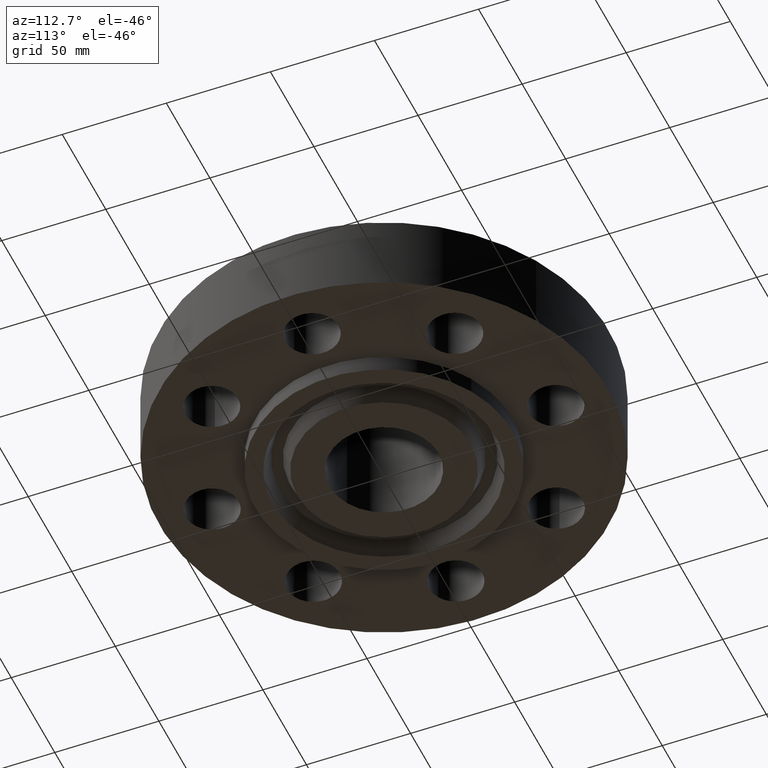
[diagram: clean part render]
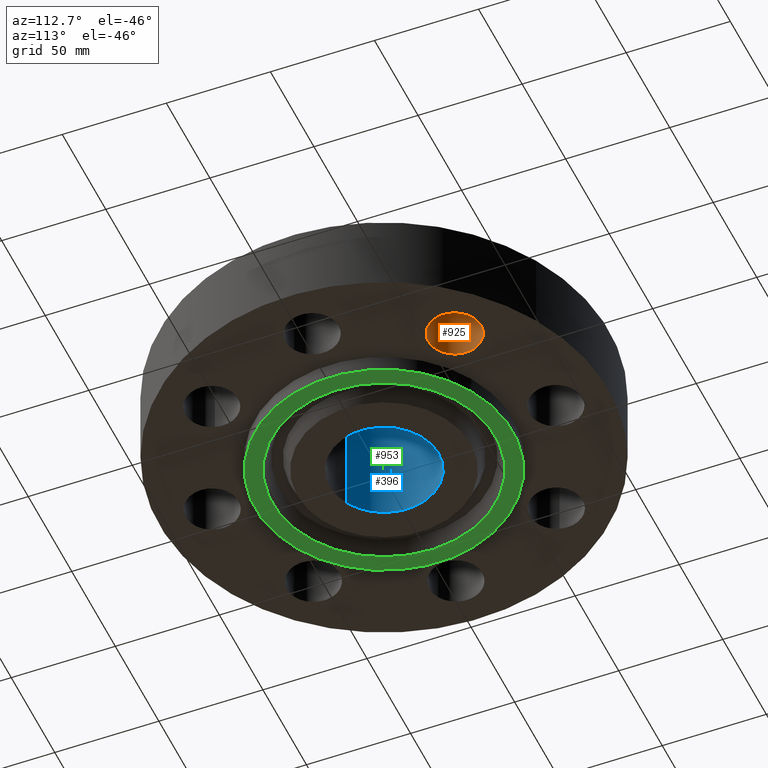
[diagram: same view with three faces highlighted in distinct colors, each labeled with its STEP entity id]
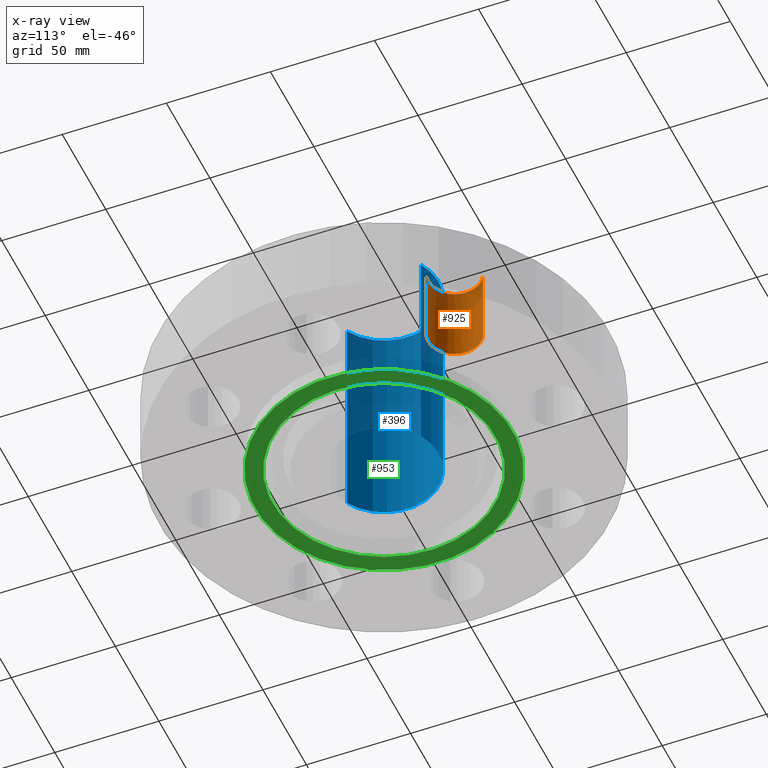
[diagram: x-ray of the same camera — body ghosted, the three highlighted faces saturated]
A machine part, auxiliary view with three faces highlighted in distinct colors.
The next image is the same camera in x-ray (body ghosted, the three faces saturated) — at least one of them is partly hidden behind the body in this view.
Their STEP definitions:

[orange] entity #925 — the highlighted cylindrical surface (edge-blend (fillet) strip) has radius 12.7 mm, axis along (0, -0, -1).
#509=AXIS2_PLACEMENT_3D('Circle Axis2P3D',#507,#508,$) ;
#886=AXIS2_PLACEMENT_3D('Cylinder Axis2P3D',#883,#884,#885) ;
#916=AXIS2_PLACEMENT_3D('Circle Axis2P3D',#914,#915,$) ;
#502=CARTESIAN_POINT('Vertex',(2.15732727329,2.77787185386,0.)) ;
#504=CARTESIAN_POINT('Vertex',(2.43886680444,1.81832222387,0.)) ;
#507=CARTESIAN_POINT('Axis2P3D Location',(2.29809703887,2.29809703887,0.)) ;
#883=CARTESIAN_POINT('Axis2P3D Location',(2.29809703887,2.29809703887,1.49606299213)) ;
#888=CARTESIAN_POINT('Line Origine',(2.15732727329,2.77787185386,0.750000000003)) ;
#892=CARTESIAN_POINT('Vertex',(2.15732727329,2.77787185386,1.50000000001)) ;
#895=CARTESIAN_POINT('Line Origine',(2.43886680444,1.81832222387,0.750000000003)) ;
#899=CARTESIAN_POINT('Vertex',(2.43886680444,1.81832222387,1.50000000001)) ;
#914=CARTESIAN_POINT('Axis2P3D Location',(2.29809703887,2.29809703887,1.50000000001)) ;
#508=DIRECTION('Axis2P3D Direction',(0.,0.,-0.0393700787402)) ;
#884=DIRECTION('Axis2P3D Direction',(0.,-0.,-0.0393700787402)) ;
#885=DIRECTION('Axis2P3D XDirection',(0.0110842335096,-0.0377775444876,0.)) ;
#889=DIRECTION('Vector Direction',(0.,0.,-0.0393700787402)) ;
#896=DIRECTION('Vector Direction',(0.,0.,-0.0393700787402)) ;
#915=DIRECTION('Axis2P3D Direction',(0.,-0.,-0.0393700787402)) ;
#890=VECTOR('Line Direction',#889,0.0393700787402) ;
#897=VECTOR('Line Direction',#896,0.0393700787402) ;
#920=ORIENTED_EDGE('',*,*,#901,.F.) ;
#921=ORIENTED_EDGE('',*,*,#511,.T.) ;
#922=ORIENTED_EDGE('',*,*,#894,.T.) ;
#923=ORIENTED_EDGE('',*,*,#918,.F.) ;
#925=ADVANCED_FACE('PartBody',(#924),#887,.F.) ;
#510=CIRCLE('generated circle',#509,0.500000000002) ;
#917=CIRCLE('generated circle',#916,0.500000000002) ;
#887=CYLINDRICAL_SURFACE('generated cylinder',#886,0.500000000002) ;
#511=EDGE_CURVE('',#505,#503,#510,.T.) ;
#894=EDGE_CURVE('',#503,#893,#891,.F.) ;
#901=EDGE_CURVE('',#505,#900,#898,.F.) ;
#918=EDGE_CURVE('',#900,#893,#917,.T.) ;
#919=EDGE_LOOP('',(#920,#921,#922,#923)) ;
#924=FACE_OUTER_BOUND('',#919,.T.) ;
#891=LINE('Line',#888,#890) ;
#898=LINE('Line',#895,#897) ;
#503=VERTEX_POINT('',#502) ;
#505=VERTEX_POINT('',#504) ;
#893=VERTEX_POINT('',#892) ;
#900=VERTEX_POINT('',#899) ;

[blue] entity #396 — the highlighted cylindrical surface (partial cylindrical patch) has radius 26.2509 mm, axis along (0, 0, -1).
#343=AXIS2_PLACEMENT_3D('Cylinder Axis2P3D',#340,#341,#342) ;
#382=AXIS2_PLACEMENT_3D('Circle Axis2P3D',#380,#381,$) ;
#387=AXIS2_PLACEMENT_3D('Circle Axis2P3D',#385,#386,$) ;
#340=CARTESIAN_POINT('Axis2P3D Location',(0.,0.,1.84350000001)) ;
#349=CARTESIAN_POINT('Vertex',(0.495486294149,0.906981577717,4.00000000002)) ;
#351=CARTESIAN_POINT('Vertex',(-0.495486294149,-0.906981577717,4.00000000002)) ;
#354=CARTESIAN_POINT('Line Origine',(0.495486294149,0.906981577717,1.84350000001)) ;
#358=CARTESIAN_POINT('Vertex',(0.495486294149,0.906981577717,-0.313000000001)) ;
#365=CARTESIAN_POINT('Vertex',(-0.495486294149,-0.906981577717,-0.313000000001)) ;
#368=CARTESIAN_POINT('Line Origine',(-0.495486294149,-0.906981577717,1.84350000001)) ;
#380=CARTESIAN_POINT('Axis2P3D Location',(0.,0.,4.00000000002)) ;
#385=CARTESIAN_POINT('Axis2P3D Location',(0.,0.,-0.313000000001)) ;
#341=DIRECTION('Axis2P3D Direction',(0.,0.,-0.0393700787402)) ;
#342=DIRECTION('Axis2P3D XDirection',(-0.0188750212049,-0.0345504945626,0.)) ;
#355=DIRECTION('Vector Direction',(0.,0.,-0.0393700787402)) ;
#369=DIRECTION('Vector Direction',(0.,0.,-0.0393700787402)) ;
#381=DIRECTION('Axis2P3D Direction',(0.,0.,-0.0393700787402)) ;
#386=DIRECTION('Axis2P3D Direction',(0.,0.,-0.0393700787402)) ;
#356=VECTOR('Line Direction',#355,0.0393700787402) ;
#370=VECTOR('Line Direction',#369,0.0393700787402) ;
#391=ORIENTED_EDGE('',*,*,#384,.F.) ;
#392=ORIENTED_EDGE('',*,*,#372,.T.) ;
#393=ORIENTED_EDGE('',*,*,#389,.T.) ;
#394=ORIENTED_EDGE('',*,*,#360,.F.) ;
#396=ADVANCED_FACE('PartBody',(#395),#344,.F.) ;
#383=CIRCLE('generated circle',#382,1.0335) ;
#388=CIRCLE('generated circle',#387,1.0335) ;
#344=CYLINDRICAL_SURFACE('generated cylinder',#343,1.0335) ;
#360=EDGE_CURVE('',#350,#359,#357,.T.) ;
#372=EDGE_CURVE('',#352,#366,#371,.T.) ;
#384=EDGE_CURVE('',#352,#350,#383,.T.) ;
#389=EDGE_CURVE('',#366,#359,#388,.T.) ;
#390=EDGE_LOOP('',(#391,#392,#393,#394)) ;
#395=FACE_OUTER_BOUND('',#390,.T.) ;
#357=LINE('Line',#354,#356) ;
#371=LINE('Line',#368,#370) ;
#350=VERTEX_POINT('',#349) ;
#352=VERTEX_POINT('',#351) ;
#359=VERTEX_POINT('',#358) ;
#366=VERTEX_POINT('',#365) ;

[green] entity #953 — the highlighted planar face has unit normal (0, 0, -1).
#431=AXIS2_PLACEMENT_3D('Circle Axis2P3D',#429,#430,$) ;
#466=AXIS2_PLACEMENT_3D('Circle Axis2P3D',#464,#465,$) ;
#929=AXIS2_PLACEMENT_3D('Plane Axis2P3D',#926,#927,#928) ;
#937=AXIS2_PLACEMENT_3D('Circle Axis2P3D',#935,#936,$) ;
#946=AXIS2_PLACEMENT_3D('Circle Axis2P3D',#944,#945,$) ;
#429=CARTESIAN_POINT('Axis2P3D Location',(0.,0.,-0.313000000001)) ;
#433=CARTESIAN_POINT('Vertex',(-1.16859975035,-2.13910749462,-0.313000000001)) ;
#435=CARTESIAN_POINT('Vertex',(1.16859975035,2.13910749462,-0.313000000001)) ;
#464=CARTESIAN_POINT('Axis2P3D Location',(0.,0.,-0.313000000001)) ;
#926=CARTESIAN_POINT('Axis2P3D Location',(0.,1.0335,-0.313000000001)) ;
#935=CARTESIAN_POINT('Axis2P3D Location',(1.39870617276E-016,-2.79741234551E-016,-0.313000000001)) ;
#939=CARTESIAN_POINT('Vertex',(1.01134817369,-1.85126041432,-0.313000000001)) ;
#941=CARTESIAN_POINT('Vertex',(-1.01134817369,1.85126041432,-0.313000000001)) ;
#944=CARTESIAN_POINT('Axis2P3D Location',(0.,-2.79741234551E-016,-0.313000000001)) ;
#430=DIRECTION('Axis2P3D Direction',(0.,0.,-0.0393700787402)) ;
#465=DIRECTION('Axis2P3D Direction',(0.,0.,-0.0393700787402)) ;
#927=DIRECTION('Axis2P3D Direction',(0.,0.,-0.0393700787402)) ;
#928=DIRECTION('Axis2P3D XDirection',(0.0393700787402,0.,0.)) ;
#936=DIRECTION('Axis2P3D Direction',(0.,0.,-0.0393700787402)) ;
#945=DIRECTION('Axis2P3D Direction',(0.,0.,-0.0393700787402)) ;
#932=ORIENTED_EDGE('',*,*,#437,.T.) ;
#933=ORIENTED_EDGE('',*,*,#468,.T.) ;
#950=ORIENTED_EDGE('',*,*,#943,.F.) ;
#951=ORIENTED_EDGE('',*,*,#948,.F.) ;
#952=FACE_BOUND('',#949,.T.) ;
#953=ADVANCED_FACE('PartBody',(#934,#952),#930,.T.) ;
#432=CIRCLE('generated circle',#431,2.43750000001) ;
#467=CIRCLE('generated circle',#466,2.43750000001) ;
#938=CIRCLE('generated circle',#937,2.10950000001) ;
#947=CIRCLE('generated circle',#946,2.10950000001) ;
#437=EDGE_CURVE('',#434,#436,#432,.T.) ;
#468=EDGE_CURVE('',#436,#434,#467,.T.) ;
#943=EDGE_CURVE('',#940,#942,#938,.T.) ;
#948=EDGE_CURVE('',#942,#940,#947,.T.) ;
#931=EDGE_LOOP('',(#932,#933)) ;
#949=EDGE_LOOP('',(#950,#951)) ;
#934=FACE_OUTER_BOUND('',#931,.T.) ;
#930=PLANE('',#929) ;
#434=VERTEX_POINT('',#433) ;
#436=VERTEX_POINT('',#435) ;
#940=VERTEX_POINT('',#939) ;
#942=VERTEX_POINT('',#941) ;